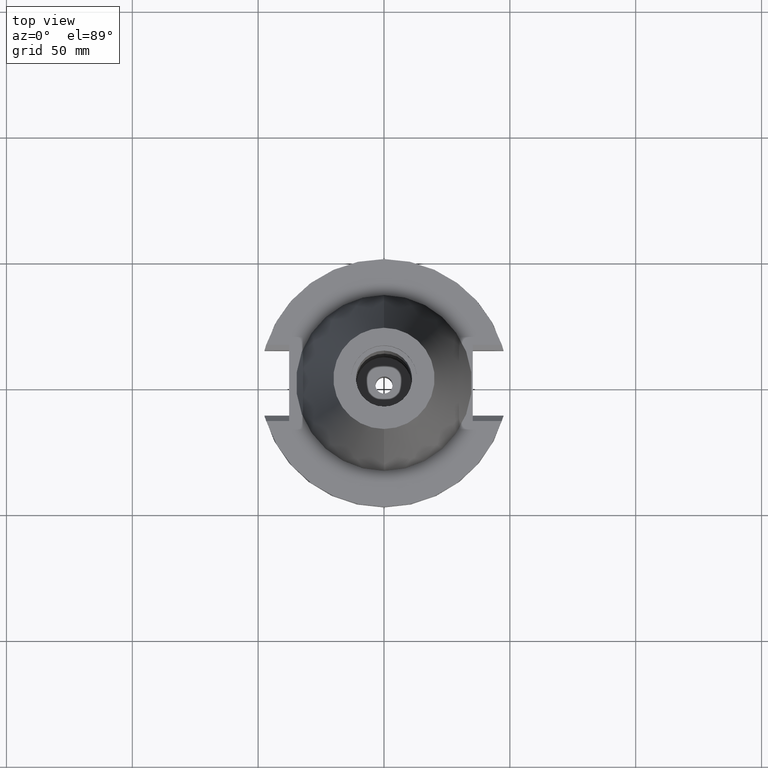
[diagram: clean part render]
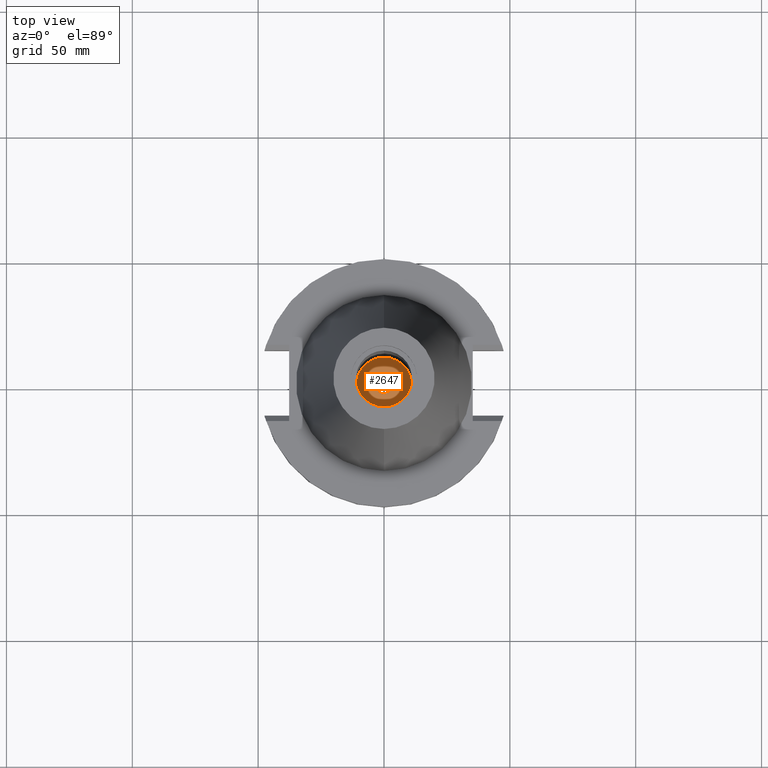
[diagram: same view with one face highlighted and labeled with its STEP entity id]
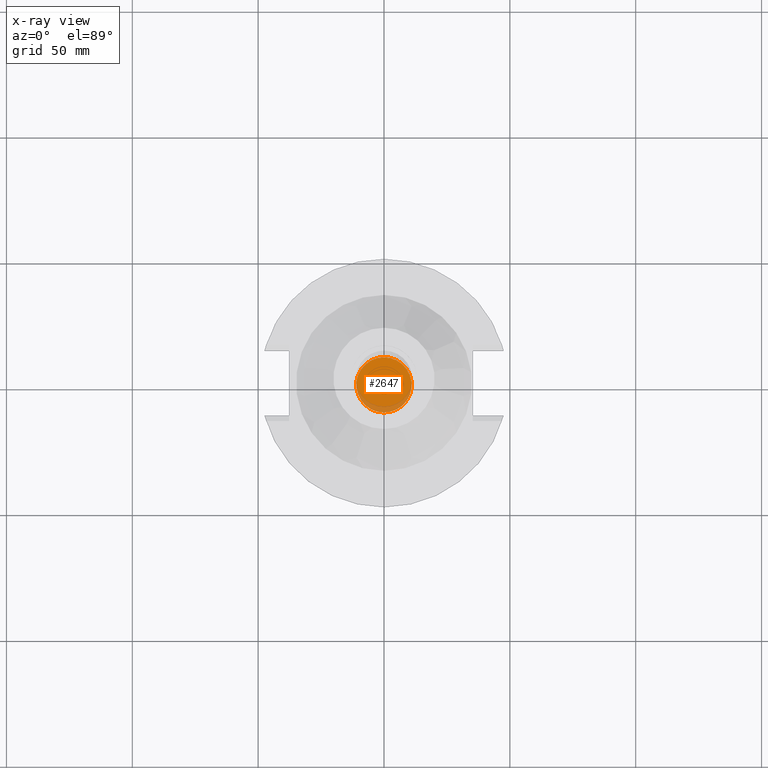
[diagram: x-ray of the same camera — body ghosted, the highlighted face saturated]
A machine part, top view. The second image highlights one B-rep face of the part: STEP entity #2647.
The next image is the same camera in x-ray: the body ghosted, the highlighted face saturated — about 15% of this face is hidden behind the body in this view.
In plain terms, the highlighted planar face has unit normal (0, 0, -1).
Its self-contained STEP definition (entity closure, byte-faithful):
#1242=CARTESIAN_POINT('',(0.E0,2.625887666732E-14,-4.84E1));
#1243=DIRECTION('',(0.E0,0.E0,-1.E0));
#1244=DIRECTION('',(0.E0,-1.E0,0.E0));
#1245=AXIS2_PLACEMENT_3D('',#1242,#1243,#1244);
#1250=CARTESIAN_POINT('',(0.E0,2.625887666732E-14,-4.84E1));
#1251=DIRECTION('',(0.E0,0.E0,-1.E0));
#1252=DIRECTION('',(0.E0,1.E0,0.E0));
#1253=AXIS2_PLACEMENT_3D('',#1250,#1251,#1252);
#1258=CARTESIAN_POINT('',(0.E0,2.625887666732E-14,-4.84E1));
#1259=DIRECTION('',(0.E0,0.E0,1.E0));
#1260=DIRECTION('',(0.E0,-1.E0,0.E0));
#1261=AXIS2_PLACEMENT_3D('',#1258,#1259,#1260);
#1266=CARTESIAN_POINT('',(0.E0,2.625887666732E-14,-4.84E1));
#1267=DIRECTION('',(0.E0,0.E0,1.E0));
#1268=DIRECTION('',(0.E0,1.E0,0.E0));
#1269=AXIS2_PLACEMENT_3D('',#1266,#1267,#1268);
#1438=CARTESIAN_POINT('',(0.E0,1.1E1,-4.84E1));
#1439=VERTEX_POINT('',#1438);
#1440=CARTESIAN_POINT('',(0.E0,-1.1E1,-4.84E1));
#1441=VERTEX_POINT('',#1440);
#1442=CARTESIAN_POINT('',(0.E0,-3.4E0,-4.84E1));
#1443=CARTESIAN_POINT('',(0.E0,3.4E0,-4.84E1));
#1444=VERTEX_POINT('',#1442);
#1445=VERTEX_POINT('',#1443);
#2632=CARTESIAN_POINT('',(0.E0,0.E0,-4.84E1));
#2633=DIRECTION('',(0.E0,0.E0,-1.E0));
#2634=DIRECTION('',(0.E0,-1.E0,0.E0));
#2635=AXIS2_PLACEMENT_3D('',#2632,#2633,#2634);
#2636=PLANE('',#2635);
#2638=ORIENTED_EDGE('',*,*,#2637,.T.);
#2640=ORIENTED_EDGE('',*,*,#2639,.T.);
#2641=EDGE_LOOP('',(#2638,#2640));
#2642=FACE_OUTER_BOUND('',#2641,.F.);
#2643=ORIENTED_EDGE('',*,*,#2625,.T.);
#2644=ORIENTED_EDGE('',*,*,#2614,.T.);
#2645=EDGE_LOOP('',(#2643,#2644));
#2646=FACE_BOUND('',#2645,.F.);
#1246=CIRCLE('',#1245,1.1E1);
#1254=CIRCLE('',#1253,1.1E1);
#1262=CIRCLE('',#1261,3.4E0);
#1270=CIRCLE('',#1269,3.4E0);
#2614=EDGE_CURVE('',#1445,#1444,#1270,.T.);
#2625=EDGE_CURVE('',#1444,#1445,#1262,.T.);
#2637=EDGE_CURVE('',#1441,#1439,#1246,.T.);
#2639=EDGE_CURVE('',#1439,#1441,#1254,.T.);
#2647=ADVANCED_FACE('',(#2642,#2646),#2636,.F.);